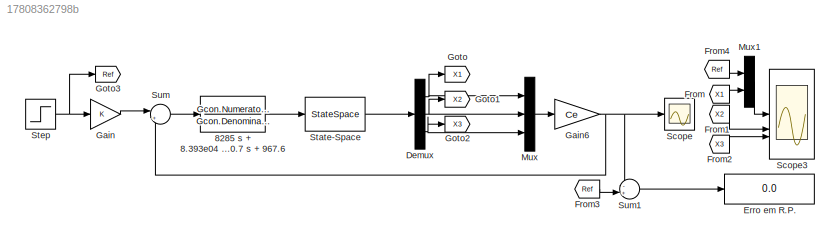
MODEL slx_17808362798b
KIND model
CONFIG AbsTol = auto
CONFIG EnableMultiTasking = off
CONFIG FixedStep = 0.01
CONFIG MaxStep = auto
CONFIG MinStep = auto
CONFIG RelTol = 1e-3
CONFIG SampleTimeConstraint = Unconstrained
CONFIG SolverName = ode4
CONFIG StartTime = 0.0
CONFIG StopTime = 10.0
BLOCK [TransferFcn]                8285 s + 8.393e04 Gcon = ------------------------------ s^2 + 60.7 s + 967.6
  Denominator = Gcon.Denominator{1}
  Numerator = Gcon.Numerator{1}
BLOCK [Demux] Demux
  Outputs = 3
BLOCK [Display] Erro em R.P.
  Decimation = 1
BLOCK [From] From
  GotoTag = X1
BLOCK [From] From1
  GotoTag = X2
BLOCK [From] From2
  GotoTag = X3
BLOCK [From] From3
  GotoTag = Ref
BLOCK [From] From4
  GotoTag = Ref
BLOCK [Gain] Gain
BLOCK [Gain] Gain6
  Gain = Ce
  Multiplication = Matrix(K*u)
BLOCK [Goto] Goto
  GotoTag = X1
BLOCK [Goto] Goto1
  GotoTag = X2
BLOCK [Goto] Goto2
  GotoTag = X3
BLOCK [Goto] Goto3
  GotoTag = Ref
BLOCK [Mux] Mux
  DisplayOption = bar
  Inputs = 3
BLOCK [Mux] Mux1
  DisplayOption = bar
  Inputs = 2
BLOCK [Scope] Scope
  Floating = off
  NumInputPorts = 1
  ScopeSpecificationString = Simulink.scopes.TimeScopeBlockCfg('CurrentConfiguration', extmgr.ConfigurationSet(extmgr.Configuration('Core','General UI',true),extmgr.Configuration('Core','Source UI',true),extmgr.Configuration('Sources','WiredSimulink',true,'DataLoggingVariableName','ScopeData1'),extmgr.Configuration('Visuals','Time Domain',true,'SerializedDisplays',{struct('MinYLimReal','-0.10129','MaxYLimReal','0.9116','YLabe...<+1475ch>
BLOCK [Scope] Scope3
  Floating = off
  NumInputPorts = 3
  ScopeSpecificationString = Simulink.scopes.TimeScopeBlockCfg('CurrentConfiguration', extmgr.ConfigurationSet(extmgr.Configuration('Core','General UI',true),extmgr.Configuration('Core','Source UI',true),extmgr.Configuration('Sources','WiredSimulink',true),extmgr.Configuration('Visuals','Time Domain',true,'SerializedDisplays',{struct('MinYLimReal','-0.125','MaxYLimReal','1.125','YLabelReal','','MinYLimMag','0.00000','MaxYLimM...<+3009ch>
BLOCK [StateSpace] State-Space
  A = Ae
  B = Be
  C = eye(3)
  D = zeros(3,1)
  InitialCondition = 0
BLOCK [Step] Step
  SampleTime = 0
  Time = 0
BLOCK [Sum] Sum
  Inputs = |+-
BLOCK [Sum] Sum1
  Inputs = -+|
  NameLocation = top
LINE                8285 s + 8.393e04 Gcon = ------------------------------ s^2 + 60.7 s + 967.6:1 -> State-Space:1
NET Demux:1 -> Goto:1, Mux:1
NET Demux:2 -> Goto1:1, Mux:2
NET Demux:3 -> Goto2:1, Mux:3
LINE From1:1 -> Scope3:2
LINE From2:1 -> Scope3:3
LINE From3:1 -> Sum1:2
LINE From4:1 -> Mux1:1
LINE From:1 -> Mux1:2
NET Gain6:1 -> Scope:1, Sum1:1, Sum:2
LINE Gain:1 -> Sum:1
LINE Mux1:1 -> Scope3:1
LINE Mux:1 -> Gain6:1
LINE State-Space:1 -> Demux:1
NET Step:1 -> Gain:1, Goto3:1
LINE Sum1:1 -> Erro em R.P.:1
LINE Sum:1 ->                8285 s + 8.393e04 Gcon = ------------------------------ s^2 + 60.7 s + 967.6:1
note: NET lines group one-source signal fan-out (src -> all destinations, sorted); 1:1 wires keep LINE
